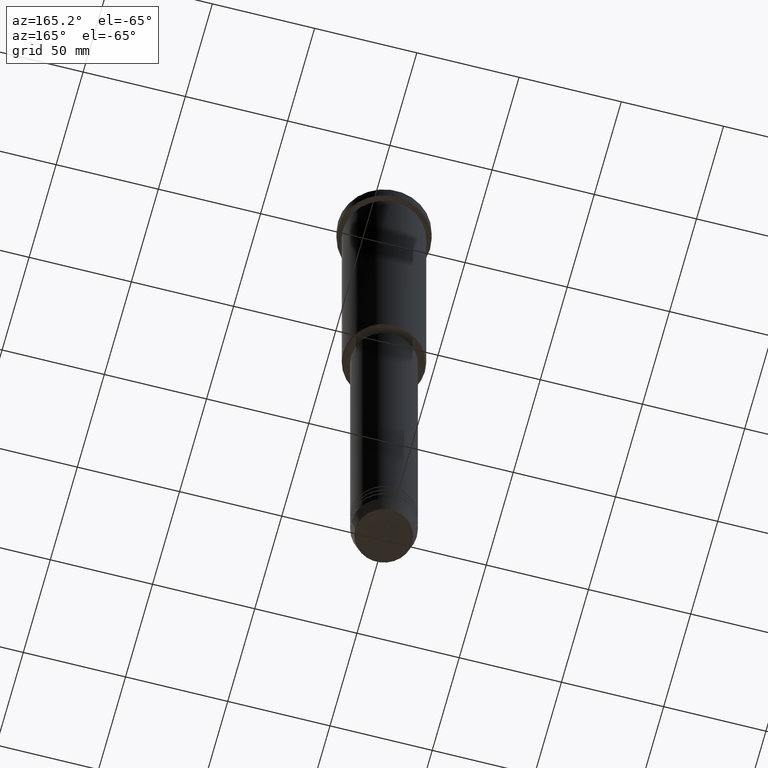
[diagram: clean part render]
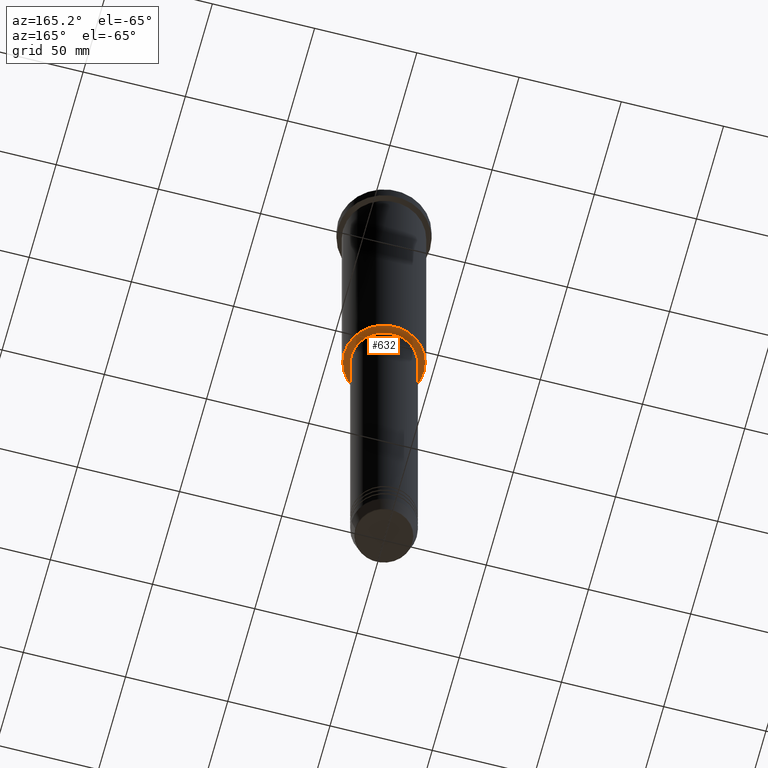
[diagram: same view with one face highlighted and labeled with its STEP entity id]
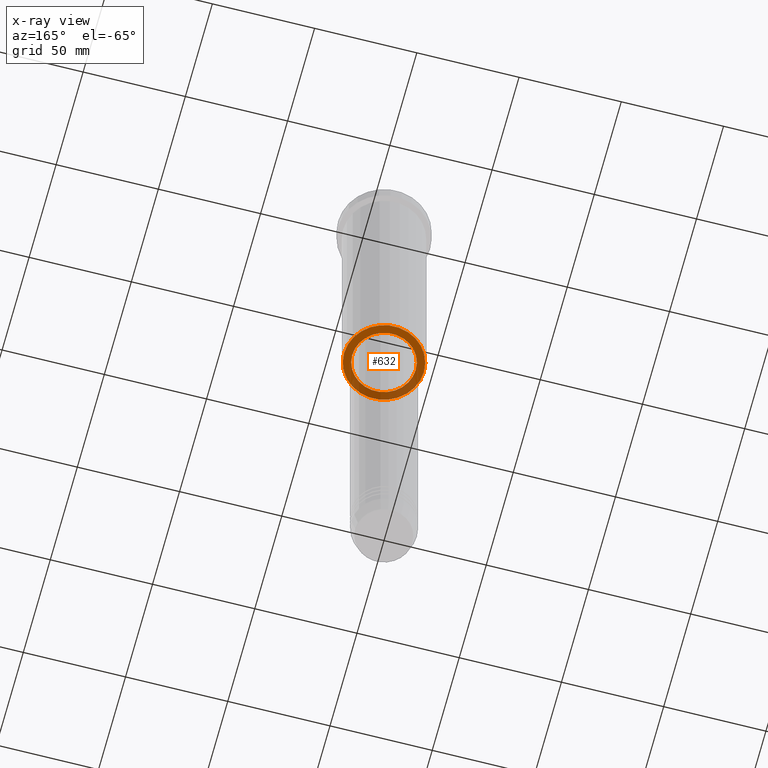
[diagram: x-ray of the same camera — body ghosted, the highlighted face saturated]
A machine part, auxiliary view. The second image highlights one B-rep face of the part: STEP entity #632.
The next image is the same camera in x-ray: the body ghosted, the highlighted face saturated — about 32% of this face is hidden behind the body in this view.
In plain terms, the highlighted planar face has unit normal (0, 0, -1).
Its self-contained STEP definition (entity closure, byte-faithful):
#3 = DIRECTION ( 'NONE',  ( 1.000000000000000000, 0.000000000000000000, 0.000000000000000000 ) ) ;
#30 = VERTEX_POINT ( 'NONE', #382 ) ;
#34 = EDGE_CURVE ( 'NONE', #938, #386, #846, .T. ) ;
#43 = EDGE_CURVE ( 'NONE', #386, #938, #988, .T. ) ;
#46 = VERTEX_POINT ( 'NONE', #649 ) ;
#92 = DIRECTION ( 'NONE',  ( 1.000000000000000000, 0.000000000000000000, 0.000000000000000000 ) ) ;
#98 = CARTESIAN_POINT ( 'NONE',  ( 0.000000000000000000, 0.000000000000000000, -145.9999999999999716 ) ) ;
#112 = DIRECTION ( 'NONE',  ( 0.000000000000000000, 0.000000000000000000, -1.000000000000000000 ) ) ;
#185 = AXIS2_PLACEMENT_3D ( 'NONE', #98, #112, #1097 ) ;
#198 = DIRECTION ( 'NONE',  ( 0.000000000000000000, 0.000000000000000000, -1.000000000000000000 ) ) ;
#276 = PLANE ( 'NONE',  #684 ) ;
#277 = CARTESIAN_POINT ( 'NONE',  ( -15.50000000000000000, 1.898202538678397557E-15, -145.9999999999999716 ) ) ;
#287 = FACE_BOUND ( 'NONE', #289, .T. ) ;
#289 = EDGE_LOOP ( 'NONE', ( #500, #470 ) ) ;
#308 = EDGE_CURVE ( 'NONE', #46, #30, #705, .T. ) ;
#382 = CARTESIAN_POINT ( 'NONE',  ( 19.49999999999998934, 0.000000000000000000, -145.9999999999999716 ) ) ;
#386 = VERTEX_POINT ( 'NONE', #277 ) ;
#423 = ORIENTED_EDGE ( 'NONE', *, *, #592, .T. ) ;
#459 = DIRECTION ( 'NONE',  ( -0.000000000000000000, -0.000000000000000000, 1.000000000000000000 ) ) ;
#470 = ORIENTED_EDGE ( 'NONE', *, *, #43, .T. ) ;
#500 = ORIENTED_EDGE ( 'NONE', *, *, #34, .T. ) ;
#524 = AXIS2_PLACEMENT_3D ( 'NONE', #1158, #532, #1167 ) ;
#526 = CIRCLE ( 'NONE', #185, 19.49999999999998934 ) ;
#532 = DIRECTION ( 'NONE',  ( 0.000000000000000000, 0.000000000000000000, -1.000000000000000000 ) ) ;
#549 = CARTESIAN_POINT ( 'NONE',  ( 0.000000000000000000, 0.000000000000000000, -145.9999999999999716 ) ) ;
#592 = EDGE_CURVE ( 'NONE', #30, #46, #526, .T. ) ;
#597 = EDGE_LOOP ( 'NONE', ( #423, #698 ) ) ;
#632 = ADVANCED_FACE ( 'NONE', ( #747, #287 ), #276, .T. ) ;
#649 = CARTESIAN_POINT ( 'NONE',  ( -19.49999999999998934, 2.418677428316021937E-15, -145.9999999999999716 ) ) ;
#655 = DIRECTION ( 'NONE',  ( -1.000000000000000000, 0.000000000000000000, -0.000000000000000000 ) ) ;
#684 = AXIS2_PLACEMENT_3D ( 'NONE', #1002, #198, #655 ) ;
#698 = ORIENTED_EDGE ( 'NONE', *, *, #308, .T. ) ;
#705 = CIRCLE ( 'NONE', #524, 19.49999999999998934 ) ;
#747 = FACE_OUTER_BOUND ( 'NONE', #597, .T. ) ;
#846 = CIRCLE ( 'NONE', #1151, 15.50000000000000000 ) ;
#878 = CARTESIAN_POINT ( 'NONE',  ( 15.50000000000000000, 0.000000000000000000, -145.9999999999999716 ) ) ;
#908 = DIRECTION ( 'NONE',  ( -0.000000000000000000, -0.000000000000000000, 1.000000000000000000 ) ) ;
#938 = VERTEX_POINT ( 'NONE', #878 ) ;
#988 = CIRCLE ( 'NONE', #1130, 15.50000000000000000 ) ;
#1002 = CARTESIAN_POINT ( 'NONE',  ( 0.000000000000000000, 20.00000000000000355, -145.9999999999999716 ) ) ;
#1097 = DIRECTION ( 'NONE',  ( -1.000000000000000000, 0.000000000000000000, 0.000000000000000000 ) ) ;
#1130 = AXIS2_PLACEMENT_3D ( 'NONE', #549, #908, #92 ) ;
#1151 = AXIS2_PLACEMENT_3D ( 'NONE', #1179, #459, #3 ) ;
#1158 = CARTESIAN_POINT ( 'NONE',  ( 0.000000000000000000, 0.000000000000000000, -145.9999999999999716 ) ) ;
#1167 = DIRECTION ( 'NONE',  ( -1.000000000000000000, 0.000000000000000000, 0.000000000000000000 ) ) ;
#1179 = CARTESIAN_POINT ( 'NONE',  ( 0.000000000000000000, 0.000000000000000000, -145.9999999999999716 ) ) ;